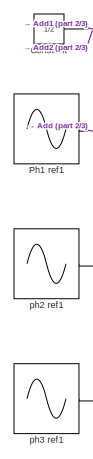
[diagram: root canvas - part 1/3, top left region]
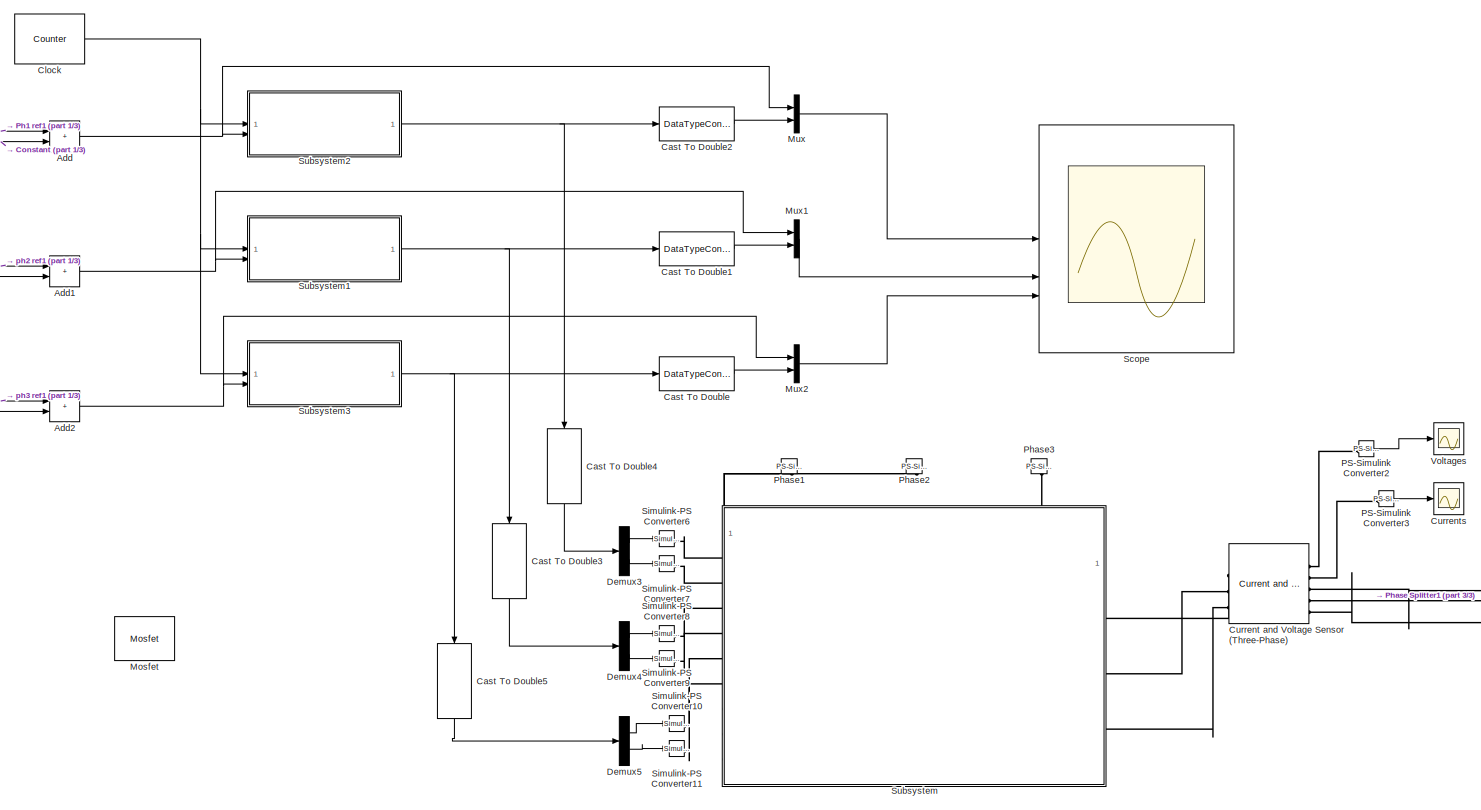
[diagram: root canvas - part 2/3, left side, full height]
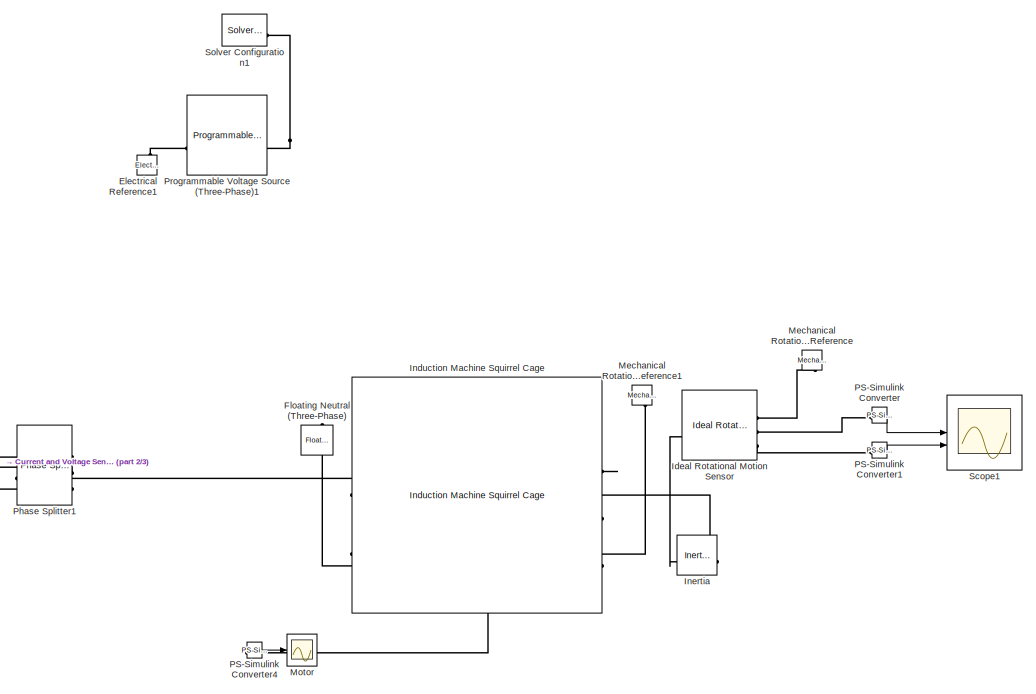
[diagram: root canvas - part 3/3, right side, full height]
MODEL slx_5619c3402cdb
KIND model
CONFIG AbsTol = auto
CONFIG EnableMultiTasking = off
CONFIG FixedStep = auto
CONFIG MaxStep = auto
CONFIG MinStep = auto
CONFIG RelTol = 1e-3
CONFIG SampleTimeConstraint = Unconstrained
CONFIG SolverName = VariableStepAuto
CONFIG StartTime = 0.0
CONFIG StopTime = 100e-3
WORKSPACE source: mxarray member
WORKSPACE Deadtime = 1e-06
WORKSPACE Fsw = 6000
WORKSPACE Output_Freq = 60
BLOCK [Sum] Add
  IconShape = rectangular
BLOCK [Sum] Add1
  IconShape = rectangular
BLOCK [Sum] Add2
  IconShape = rectangular
BLOCK [DataTypeConversion] Cast To Double
  OutDataTypeStr = double
  RndMeth = Floor
  SaturateOnIntegerOverflow = off
BLOCK [DataTypeConversion] Cast To Double1
  OutDataTypeStr = double
  RndMeth = Floor
  SaturateOnIntegerOverflow = off
BLOCK [DataTypeConversion] Cast To Double2
  OutDataTypeStr = double
  RndMeth = Floor
  SaturateOnIntegerOverflow = off
BLOCK [DataTypeConversion] Cast To Double3
  NameLocation = left
  OutDataTypeStr = double
  RndMeth = Floor
  SaturateOnIntegerOverflow = off
BLOCK [DataTypeConversion] Cast To Double4
  NameLocation = left
  OutDataTypeStr = double
  RndMeth = Floor
  SaturateOnIntegerOverflow = off
BLOCK [DataTypeConversion] Cast To Double5
  NameLocation = left
  OutDataTypeStr = double
  RndMeth = Floor
  SaturateOnIntegerOverflow = off
BLOCK [Reference] Clock  REF=eeGeneralControl/Counter
  LibrarySourceBlock = ee_sl_lib/General Control/Counter
  SourceBlock = eeGeneralControl/Counter
  SourceType = Counter
BLOCK [Constant] Constant
  Value = 1/2
BLOCK [Reference] Current and Voltage Sensor (Three-Phase)  REF=ee_lib/Sensors &
Transducers/Current and Voltage
Sensor (Three-Phase)
  Commented = on
  SourceBlock = ee_lib/Sensors &\nTransducers/Current and Voltage\nSensor (Three-Phase)
  SourceType = Current and Voltage\nSensor (Three-Phase)
BLOCK [Scope] Currents
  Commented = on
  Floating = off
  NumInputPorts = 1
  ScopeSpecificationString = Simulink.scopes.TimeScopeBlockCfg('CurrentConfiguration', extmgr.ConfigurationSet(extmgr.Configuration('Core','General UI',true),extmgr.Configuration('Core','Source UI',true),extmgr.Configuration('Sources','WiredSimulink',true,'DataLoggingVariableName','ScopeData3'),extmgr.Configuration('Visuals','Time Domain',true,'SerializedDisplays',{struct('MinYLimReal','2.14833','MaxYLimReal','2.1491','YLabel...<+1506ch>
BLOCK [Demux] Demux3
  Outputs = 2
BLOCK [Demux] Demux4
  Outputs = 2
BLOCK [Demux] Demux5
  Outputs = 2
BLOCK [Reference] Electrical Reference1  REF=fl_lib/Electrical/Electrical Elements/Electrical Reference
  Commented = on
  LibrarySourceBlock = ee_lib/Connectors &\nReferences/Electrical Reference
  NameLocation = right
  SourceBlock = fl_lib/Electrical/Electrical Elements/Electrical Reference
  SourceType = Electrical Reference
BLOCK [Reference] Floating Neutral (Three-Phase)  REF=ee_lib/Connectors &
References/Floating Neutral
(Three-Phase)
  Commented = on
  NameLocation = right
  SourceBlock = ee_lib/Connectors &\nReferences/Floating Neutral\n(Three-Phase)
  SourceType = Floating Neutral\n(Three-Phase)
BLOCK [Reference] Ideal Rotational Motion Sensor  REF=fl_lib/Mechanical/Mechanical Sensors/Ideal Rotational
Motion Sensor
  Commented = on
  SourceBlock = fl_lib/Mechanical/Mechanical Sensors/Ideal Rotational\nMotion Sensor
  SourceType = Ideal Rotational\nMotion Sensor
BLOCK [Reference] Induction Machine Squirrel Cage  REF=ee_lib/Electromechanical/Asynchronous/Induction Machine
Squirrel Cage
  Commented = on
  NameLocation = top
  SourceBlock = ee_lib/Electromechanical/Asynchronous/Induction Machine\nSquirrel Cage
  SourceType = Induction Machine\nSquirrel Cage
BLOCK [Reference] Inertia  REF=fl_lib/Mechanical/Rotational Elements/Inertia
  Commented = on
  NameLocation = top
  SourceBlock = fl_lib/Mechanical/Rotational Elements/Inertia
  SourceType = Inertia
BLOCK [Reference] Mechanical Rotational Reference  REF=fl_lib/Mechanical/Rotational Elements/Mechanical
Rotational Reference
  Commented = on
  NameLocation = left
  SourceBlock = fl_lib/Mechanical/Rotational Elements/Mechanical\nRotational Reference
  SourceType = Mechanical\nRotational Reference
BLOCK [Reference] Mechanical Rotational Reference1  REF=fl_lib/Mechanical/Rotational Elements/Mechanical
Rotational Reference
  Commented = on
  NameLocation = left
  SourceBlock = fl_lib/Mechanical/Rotational Elements/Mechanical\nRotational Reference
  SourceType = Mechanical\nRotational Reference
BLOCK [Reference] Mosfet  REF=spsMosfetLib/Mosfet
  LibrarySourceBlock = sps_lib/Power Electronics/Mosfet
  SourceBlock = spsMosfetLib/Mosfet
  SourceType = Mosfet
BLOCK [Scope] Motor
  Commented = on
  Floating = off
  NumInputPorts = 1
  ScopeSpecificationString = Simulink.scopes.TimeScopeBlockCfg('CurrentConfiguration', extmgr.ConfigurationSet(extmgr.Configuration('Core','General UI',true),extmgr.Configuration('Core','Source UI',true),extmgr.Configuration('Sources','WiredSimulink',true,'DataLoggingVariableName','ScopeData4'),extmgr.Configuration('Visuals','Time Domain',true,'SerializedDisplays',{struct('MinYLimReal','-0.26498','MaxYLimReal','0.24212','YLab...<+1622ch>
BLOCK [Mux] Mux
  DisplayOption = bar
  Inputs = 2
BLOCK [Mux] Mux1
  DisplayOption = bar
  Inputs = 2
BLOCK [Mux] Mux2
  DisplayOption = bar
  Inputs = 2
BLOCK [Reference] PS-Simulink Converter  REF=nesl_utility/PS-Simulink
Converter
  Commented = on
  SourceBlock = nesl_utility/PS-Simulink\nConverter
  SourceType = PS-Simulink\nConverter
BLOCK [Reference] PS-Simulink Converter1  REF=nesl_utility/PS-Simulink
Converter
  Commented = on
  SourceBlock = nesl_utility/PS-Simulink\nConverter
  SourceType = PS-Simulink\nConverter
BLOCK [Reference] PS-Simulink Converter2  REF=nesl_utility/PS-Simulink
Converter
  Commented = on
  SourceBlock = nesl_utility/PS-Simulink\nConverter
  SourceType = PS-Simulink\nConverter
BLOCK [Reference] PS-Simulink Converter3  REF=nesl_utility/PS-Simulink
Converter
  Commented = on
  SourceBlock = nesl_utility/PS-Simulink\nConverter
  SourceType = PS-Simulink\nConverter
BLOCK [Reference] PS-Simulink Converter4  REF=nesl_utility/PS-Simulink
Converter
  Commented = on
  SourceBlock = nesl_utility/PS-Simulink\nConverter
  SourceType = PS-Simulink\nConverter
BLOCK [Sin] Ph1 ref1
  Amplitude = 1/2
  Frequency = Output_Freq
  SampleTime = 0
BLOCK [Reference] Phase Splitter1  REF=ee_lib/Connectors &
References/Phase Splitter
  Commented = on
  NameLocation = top
  SourceBlock = ee_lib/Connectors &\nReferences/Phase Splitter
  SourceType = Phase Splitter
BLOCK [Reference] Phase1  REF=nesl_utility/PS-Simulink
Converter
  Commented = on
  NameLocation = right
  SourceBlock = nesl_utility/PS-Simulink\nConverter
  SourceType = PS-Simulink\nConverter
BLOCK [Reference] Phase2  REF=nesl_utility/PS-Simulink
Converter
  Commented = on
  NameLocation = right
  SourceBlock = nesl_utility/PS-Simulink\nConverter
  SourceType = PS-Simulink\nConverter
BLOCK [Reference] Phase3  REF=nesl_utility/PS-Simulink
Converter
  Commented = on
  NameLocation = right
  SourceBlock = nesl_utility/PS-Simulink\nConverter
  SourceType = PS-Simulink\nConverter
BLOCK [Reference] Programmable Voltage Source (Three-Phase)1  REF=ee_lib/Sources/Programmable Voltage
Source
(Three-Phase)
  Commented = on
  SourceBlock = ee_lib/Sources/Programmable Voltage\nSource\n(Three-Phase)
  SourceType = Programmable Voltage\nSource\n(Three-Phase)
BLOCK [Scope] Scope
  Floating = off
  NumInputPorts = 3
  ScopeSpecificationString = Simulink.scopes.TimeScopeBlockCfg('CurrentConfiguration', extmgr.ConfigurationSet(extmgr.Configuration('Core','General UI',true),extmgr.Configuration('Core','Source UI',true),extmgr.Configuration('Sources','WiredSimulink',true),extmgr.Configuration('Visuals','Time Domain',true,'SerializedDisplays',{struct('MinYLimReal','-0.125','MaxYLimReal','1.125','YLabelReal','','MinYLimMag','0.00000','MaxYLimM...<+2792ch>
BLOCK [Scope] Scope1
  Commented = on
  Floating = off
  NumInputPorts = 2
  ScopeSpecificationString = Simulink.scopes.TimeScopeBlockCfg('CurrentConfiguration', extmgr.ConfigurationSet(extmgr.Configuration('Core','General UI',true),extmgr.Configuration('Core','Source UI',true),extmgr.Configuration('Sources','WiredSimulink',true,'DataLoggingVariableName','ScopeData1'),extmgr.Configuration('Visuals','Time Domain',true),extmgr.Configuration('Tools','Plot Navigation',true),extmgr.Configuration('Tools',...<+40ch>
BLOCK [Reference] Simulink-PS Converter10  REF=nesl_utility/Simulink-PS
Converter
  Commented = on
  SourceBlock = nesl_utility/Simulink-PS\nConverter
  SourceType = Simulink-PS\nConverter
BLOCK [Reference] Simulink-PS Converter11  REF=nesl_utility/Simulink-PS
Converter
  Commented = on
  SourceBlock = nesl_utility/Simulink-PS\nConverter
  SourceType = Simulink-PS\nConverter
BLOCK [Reference] Simulink-PS Converter6  REF=nesl_utility/Simulink-PS
Converter
  Commented = on
  SourceBlock = nesl_utility/Simulink-PS\nConverter
  SourceType = Simulink-PS\nConverter
BLOCK [Reference] Simulink-PS Converter7  REF=nesl_utility/Simulink-PS
Converter
  Commented = on
  SourceBlock = nesl_utility/Simulink-PS\nConverter
  SourceType = Simulink-PS\nConverter
BLOCK [Reference] Simulink-PS Converter8  REF=nesl_utility/Simulink-PS
Converter
  Commented = on
  SourceBlock = nesl_utility/Simulink-PS\nConverter
  SourceType = Simulink-PS\nConverter
BLOCK [Reference] Simulink-PS Converter9  REF=nesl_utility/Simulink-PS
Converter
  Commented = on
  SourceBlock = nesl_utility/Simulink-PS\nConverter
  SourceType = Simulink-PS\nConverter
BLOCK [Reference] Solver Configuration1  REF=nesl_utility/Solver
Configuration
  Commented = on
  SourceBlock = nesl_utility/Solver\nConfiguration
  SourceType = Solver\nConfiguration
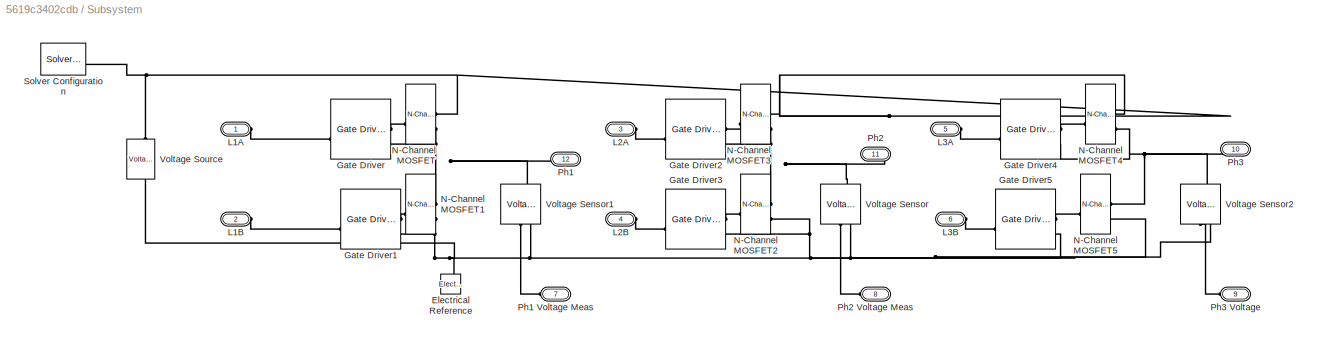
BLOCK [SubSystem] Subsystem
  Commented = on
  PortSchema = {"entries":[{"content":{"sides":[{"content":{"connectorIds":["LConn1","LConn2","LConn3","LConn4","LConn5","LConn6"]},"type":"ConnectorPlacement.EquallySpacedRectSide","uuid":"af31cf31-3d53-4e7b-b634-e8eb8ec30595"},{"content":{"connectorIds":["RConn1","RConn2","RConn3"],"side":"RIGHT"},"type":"ConnectorPlacement.EquallySpacedRectSide","uuid":"70d148f0-6af3-446a-994f-8e3408ada8e6"},{"content":{"conn...<+334ch>
BLOCK [Reference] Subsystem/Electrical Reference  REF=fl_lib/Electrical/Electrical Elements/Electrical Reference
  LibrarySourceBlock = ee_lib/Connectors &\nReferences/Electrical Reference
  NameLocation = right
  SourceBlock = fl_lib/Electrical/Electrical Elements/Electrical Reference
  SourceType = Electrical Reference
BLOCK [Reference] Subsystem/Gate Driver  REF=ee_lib/Semiconductors &
Converters/Gate Driver
  SourceBlock = ee_lib/Semiconductors &\nConverters/Gate Driver
  SourceType = Gate Driver
BLOCK [Reference] Subsystem/Gate Driver1  REF=ee_lib/Semiconductors &
Converters/Gate Driver
  SourceBlock = ee_lib/Semiconductors &\nConverters/Gate Driver
  SourceType = Gate Driver
BLOCK [Reference] Subsystem/Gate Driver2  REF=ee_lib/Semiconductors &
Converters/Gate Driver
  SourceBlock = ee_lib/Semiconductors &\nConverters/Gate Driver
  SourceType = Gate Driver
BLOCK [Reference] Subsystem/Gate Driver3  REF=ee_lib/Semiconductors &
Converters/Gate Driver
  SourceBlock = ee_lib/Semiconductors &\nConverters/Gate Driver
  SourceType = Gate Driver
BLOCK [Reference] Subsystem/Gate Driver4  REF=ee_lib/Semiconductors &
Converters/Gate Driver
  SourceBlock = ee_lib/Semiconductors &\nConverters/Gate Driver
  SourceType = Gate Driver
BLOCK [Reference] Subsystem/Gate Driver5  REF=ee_lib/Semiconductors &
Converters/Gate Driver
  SourceBlock = ee_lib/Semiconductors &\nConverters/Gate Driver
  SourceType = Gate Driver
BLOCK [PMIOPort] Subsystem/L1A
  Side = Left
BLOCK [PMIOPort] Subsystem/L1B
  Port = 2
  Side = Left
BLOCK [PMIOPort] Subsystem/L2A
  Port = 3
  Side = Left
BLOCK [PMIOPort] Subsystem/L2B
  Port = 4
  Side = Left
BLOCK [PMIOPort] Subsystem/L3A
  Port = 5
  Side = Left
BLOCK [PMIOPort] Subsystem/L3B
  Port = 6
  Side = Left
BLOCK [Reference] Subsystem/N-Channel MOSFET  REF=ee_lib/Semiconductors &
Converters/N-Channel MOSFET
  SourceBlock = ee_lib/Semiconductors &\nConverters/N-Channel MOSFET
  SourceType = N-Channel MOSFET
BLOCK [Reference] Subsystem/N-Channel MOSFET1  REF=ee_lib/Semiconductors &
Converters/N-Channel MOSFET
  SourceBlock = ee_lib/Semiconductors &\nConverters/N-Channel MOSFET
  SourceType = N-Channel MOSFET
BLOCK [Reference] Subsystem/N-Channel MOSFET2  REF=ee_lib/Semiconductors &
Converters/N-Channel MOSFET
  SourceBlock = ee_lib/Semiconductors &\nConverters/N-Channel MOSFET
  SourceType = N-Channel MOSFET
BLOCK [Reference] Subsystem/N-Channel MOSFET3  REF=ee_lib/Semiconductors &
Converters/N-Channel MOSFET
  SourceBlock = ee_lib/Semiconductors &\nConverters/N-Channel MOSFET
  SourceType = N-Channel MOSFET
BLOCK [Reference] Subsystem/N-Channel MOSFET4  REF=ee_lib/Semiconductors &
Converters/N-Channel MOSFET
  SourceBlock = ee_lib/Semiconductors &\nConverters/N-Channel MOSFET
  SourceType = N-Channel MOSFET
BLOCK [Reference] Subsystem/N-Channel MOSFET5  REF=ee_lib/Semiconductors &
Converters/N-Channel MOSFET
  SourceBlock = ee_lib/Semiconductors &\nConverters/N-Channel MOSFET
  SourceType = N-Channel MOSFET
BLOCK [PMIOPort] Subsystem/Ph1
  Port = 12
  Side = Right
BLOCK [PMIOPort] Subsystem/Ph1 Voltage Meas
  Port = 7
  Side = Left
BLOCK [PMIOPort] Subsystem/Ph2
  Port = 11
  Side = Right
BLOCK [PMIOPort] Subsystem/Ph2 Voltage Meas
  Port = 8
  Side = Left
BLOCK [PMIOPort] Subsystem/Ph3
  Port = 10
  Side = Right
BLOCK [PMIOPort] Subsystem/Ph3 Voltage
  Port = 9
  Side = Left
BLOCK [Reference] Subsystem/Solver Configuration  REF=nesl_utility/Solver
Configuration
  SourceBlock = nesl_utility/Solver\nConfiguration
  SourceType = Solver\nConfiguration
BLOCK [Reference] Subsystem/Voltage Sensor  REF=fl_lib/Electrical/Electrical Sensors/Voltage Sensor
  LibrarySourceBlock = ee_lib/Sensors &\nTransducers/Voltage Sensor
  NameLocation = right
  SourceBlock = fl_lib/Electrical/Electrical Sensors/Voltage Sensor
  SourceType = Voltage Sensor
BLOCK [Reference] Subsystem/Voltage Sensor1  REF=fl_lib/Electrical/Electrical Sensors/Voltage Sensor
  LibrarySourceBlock = ee_lib/Sensors &\nTransducers/Voltage Sensor
  NameLocation = right
  SourceBlock = fl_lib/Electrical/Electrical Sensors/Voltage Sensor
  SourceType = Voltage Sensor
BLOCK [Reference] Subsystem/Voltage Sensor2  REF=fl_lib/Electrical/Electrical Sensors/Voltage Sensor
  LibrarySourceBlock = ee_lib/Sensors &\nTransducers/Voltage Sensor
  NameLocation = right
  SourceBlock = fl_lib/Electrical/Electrical Sensors/Voltage Sensor
  SourceType = Voltage Sensor
BLOCK [Reference] Subsystem/Voltage Source  REF=ee_lib/Sources/Voltage Source
  NameLocation = right
  SourceBlock = ee_lib/Sources/Voltage Source
  SourceType = Voltage Source
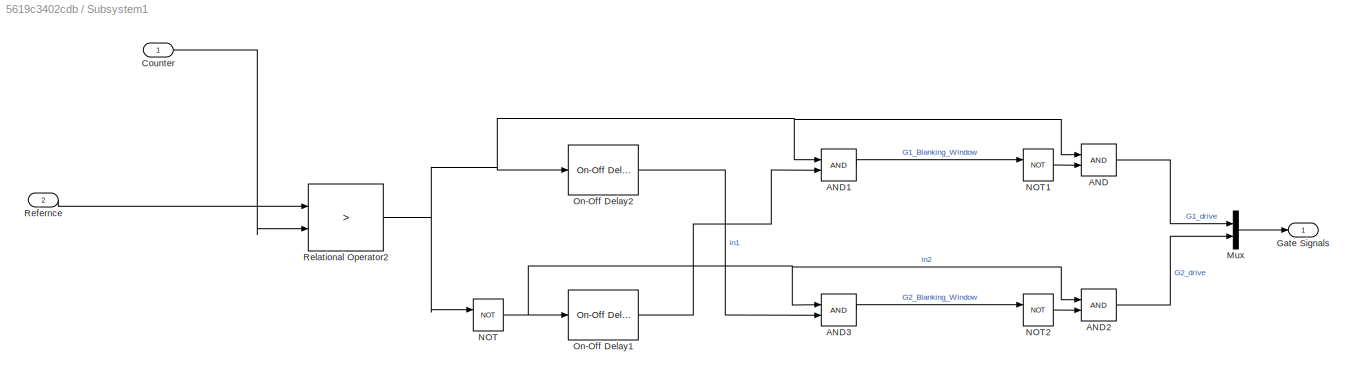
BLOCK [SubSystem] Subsystem1
BLOCK [Logic] Subsystem1/AND
  AllPortsSameDT = off
  IconShape = distinctive
  OutDataTypeStr = boolean
BLOCK [Logic] Subsystem1/AND1
  AllPortsSameDT = off
  IconShape = distinctive
  OutDataTypeStr = boolean
BLOCK [Logic] Subsystem1/AND2
  AllPortsSameDT = off
  IconShape = distinctive
  OutDataTypeStr = boolean
BLOCK [Logic] Subsystem1/AND3
  AllPortsSameDT = off
  IconShape = distinctive
  OutDataTypeStr = boolean
BLOCK [Inport] Subsystem1/Counter
BLOCK [Outport] Subsystem1/Gate Signals
BLOCK [Mux] Subsystem1/Mux
  DisplayOption = bar
  Inputs = 2
BLOCK [Logic] Subsystem1/NOT
  AllPortsSameDT = off
  IconShape = distinctive
  Operator = NOT
  OutDataTypeStr = boolean
BLOCK [Logic] Subsystem1/NOT1
  AllPortsSameDT = off
  IconShape = distinctive
  Operator = NOT
  OutDataTypeStr = boolean
BLOCK [Logic] Subsystem1/NOT2
  AllPortsSameDT = off
  IconShape = distinctive
  Operator = NOT
  OutDataTypeStr = boolean
BLOCK [Reference] Subsystem1/On-Off Delay1  REF=eeGeneralControl/On-Off Delay
  LibrarySourceBlock = ee_sl_lib/General Control/On-Off Delay
  SourceBlock = eeGeneralControl/On-Off Delay
  SourceType = On-Off Delay
BLOCK [Reference] Subsystem1/On-Off Delay2  REF=eeGeneralControl/On-Off Delay
  LibrarySourceBlock = ee_sl_lib/General Control/On-Off Delay
  SourceBlock = eeGeneralControl/On-Off Delay
  SourceType = On-Off Delay
BLOCK [Inport] Subsystem1/Refernce
  Port = 2
BLOCK [RelationalOperator] Subsystem1/Relational Operator2
  InputSameDT = off
  Operator = >
  OutDataTypeStr = boolean
  RndMeth = Simplest
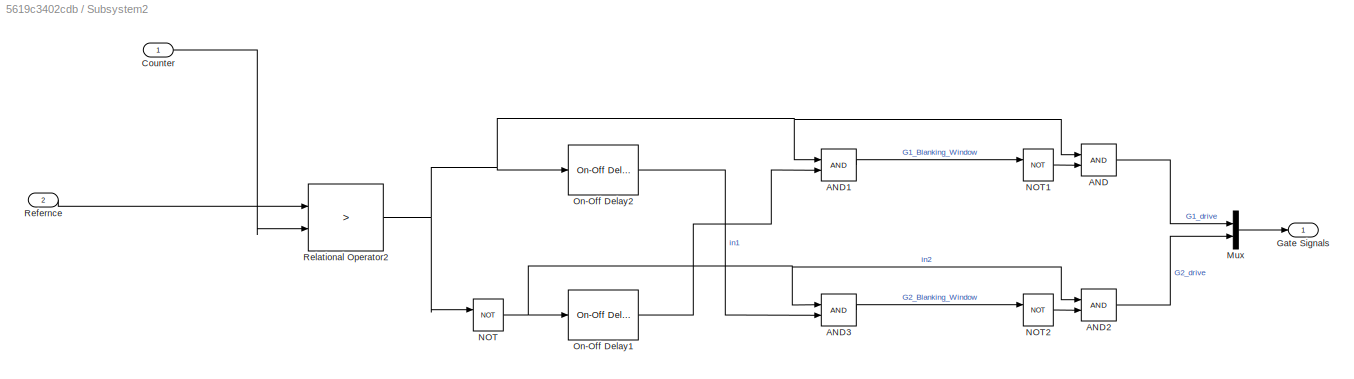
BLOCK [SubSystem] Subsystem2
BLOCK [Logic] Subsystem2/AND
  AllPortsSameDT = off
  IconShape = distinctive
  OutDataTypeStr = boolean
BLOCK [Logic] Subsystem2/AND1
  AllPortsSameDT = off
  IconShape = distinctive
  OutDataTypeStr = boolean
BLOCK [Logic] Subsystem2/AND2
  AllPortsSameDT = off
  IconShape = distinctive
  OutDataTypeStr = boolean
BLOCK [Logic] Subsystem2/AND3
  AllPortsSameDT = off
  IconShape = distinctive
  OutDataTypeStr = boolean
BLOCK [Inport] Subsystem2/Counter
BLOCK [Outport] Subsystem2/Gate Signals
BLOCK [Mux] Subsystem2/Mux
  DisplayOption = bar
  Inputs = 2
BLOCK [Logic] Subsystem2/NOT
  AllPortsSameDT = off
  IconShape = distinctive
  Operator = NOT
  OutDataTypeStr = boolean
BLOCK [Logic] Subsystem2/NOT1
  AllPortsSameDT = off
  IconShape = distinctive
  Operator = NOT
  OutDataTypeStr = boolean
BLOCK [Logic] Subsystem2/NOT2
  AllPortsSameDT = off
  IconShape = distinctive
  Operator = NOT
  OutDataTypeStr = boolean
BLOCK [Reference] Subsystem2/On-Off Delay1  REF=eeGeneralControl/On-Off Delay
  LibrarySourceBlock = ee_sl_lib/General Control/On-Off Delay
  SourceBlock = eeGeneralControl/On-Off Delay
  SourceType = On-Off Delay
BLOCK [Reference] Subsystem2/On-Off Delay2  REF=eeGeneralControl/On-Off Delay
  LibrarySourceBlock = ee_sl_lib/General Control/On-Off Delay
  SourceBlock = eeGeneralControl/On-Off Delay
  SourceType = On-Off Delay
BLOCK [Inport] Subsystem2/Refernce
  Port = 2
BLOCK [RelationalOperator] Subsystem2/Relational Operator2
  InputSameDT = off
  Operator = >
  OutDataTypeStr = boolean
  RndMeth = Simplest
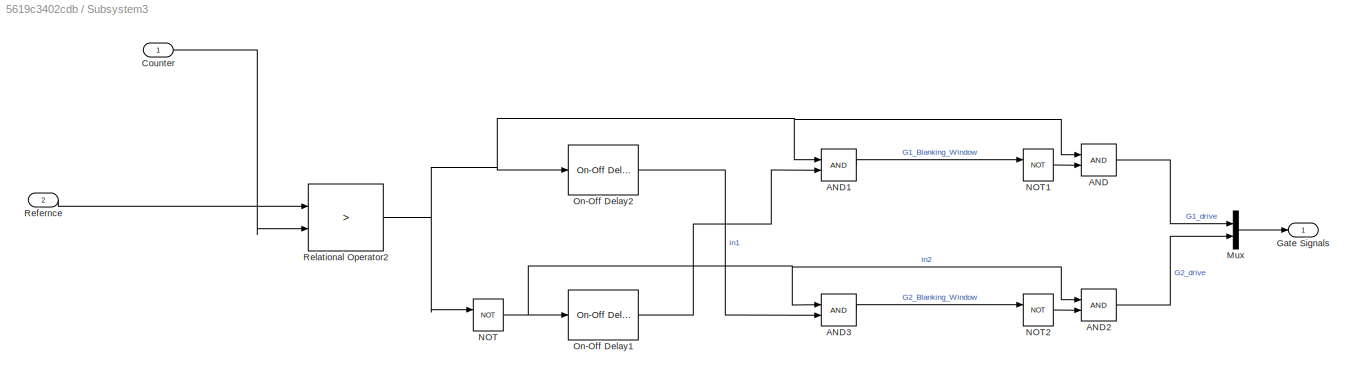
BLOCK [SubSystem] Subsystem3
BLOCK [Logic] Subsystem3/AND
  AllPortsSameDT = off
  IconShape = distinctive
  OutDataTypeStr = boolean
BLOCK [Logic] Subsystem3/AND1
  AllPortsSameDT = off
  IconShape = distinctive
  OutDataTypeStr = boolean
BLOCK [Logic] Subsystem3/AND2
  AllPortsSameDT = off
  IconShape = distinctive
  OutDataTypeStr = boolean
BLOCK [Logic] Subsystem3/AND3
  AllPortsSameDT = off
  IconShape = distinctive
  OutDataTypeStr = boolean
BLOCK [Inport] Subsystem3/Counter
BLOCK [Outport] Subsystem3/Gate Signals
BLOCK [Mux] Subsystem3/Mux
  DisplayOption = bar
  Inputs = 2
BLOCK [Logic] Subsystem3/NOT
  AllPortsSameDT = off
  IconShape = distinctive
  Operator = NOT
  OutDataTypeStr = boolean
BLOCK [Logic] Subsystem3/NOT1
  AllPortsSameDT = off
  IconShape = distinctive
  Operator = NOT
  OutDataTypeStr = boolean
BLOCK [Logic] Subsystem3/NOT2
  AllPortsSameDT = off
  IconShape = distinctive
  Operator = NOT
  OutDataTypeStr = boolean
BLOCK [Reference] Subsystem3/On-Off Delay1  REF=eeGeneralControl/On-Off Delay
  LibrarySourceBlock = ee_sl_lib/General Control/On-Off Delay
  SourceBlock = eeGeneralControl/On-Off Delay
  SourceType = On-Off Delay
BLOCK [Reference] Subsystem3/On-Off Delay2  REF=eeGeneralControl/On-Off Delay
  LibrarySourceBlock = ee_sl_lib/General Control/On-Off Delay
  SourceBlock = eeGeneralControl/On-Off Delay
  SourceType = On-Off Delay
BLOCK [Inport] Subsystem3/Refernce
  Port = 2
BLOCK [RelationalOperator] Subsystem3/Relational Operator2
  InputSameDT = off
  Operator = >
  OutDataTypeStr = boolean
  RndMeth = Simplest
BLOCK [Scope] Voltages
  Commented = on
  Floating = off
  NumInputPorts = 1
  ScopeSpecificationString = Simulink.scopes.TimeScopeBlockCfg('CurrentConfiguration', extmgr.ConfigurationSet(extmgr.Configuration('Core','General UI',true),extmgr.Configuration('Core','Source UI',true),extmgr.Configuration('Sources','WiredSimulink',true,'DataLoggingVariableName','ScopeData2'),extmgr.Configuration('Visuals','Time Domain',true,'SerializedDisplays',{struct('MinYLimReal','-125.92269','MaxYLimReal','125.92269','...<+1522ch>
BLOCK [Sin] ph2 ref1
  Amplitude = 1/2
  Frequency = Output_Freq
  Phase = 2*pi/3
  SampleTime = 0
BLOCK [Sin] ph3 ref1
  Amplitude = 1/2
  Frequency = Output_Freq
  Phase = 4*pi/3
  SampleTime = 0
NET Add1:1 -> Mux1:1, Subsystem1:2
NET Add2:1 -> Mux2:1, Subsystem3:2
NET Add:1 -> Mux:1, Subsystem2:2
LINE Cast To Double1:1 -> Mux1:2
LINE Cast To Double2:1 -> Mux:2
LINE Cast To Double3:1 -> Demux4:1
LINE Cast To Double4:1 -> Demux3:1
LINE Cast To Double5:1 -> Demux5:1
LINE Cast To Double:1 -> Mux2:2
NET Clock:1 -> Subsystem1:1, Subsystem2:1, Subsystem3:1
NET Constant:1 -> Add1:2, Add2:2, Add:2
LINE Demux3:1 -> Simulink-PS Converter6:1
LINE Demux3:2 -> Simulink-PS Converter7:1
LINE Demux4:1 -> Simulink-PS Converter8:1
LINE Demux4:2 -> Simulink-PS Converter9:1
LINE Demux5:1 -> Simulink-PS Converter10:1
LINE Demux5:2 -> Simulink-PS Converter11:1
LINE Mux1:1 -> Scope:2
LINE Mux2:1 -> Scope:3
LINE Mux:1 -> Scope:1
LINE PS-Simulink Converter1:1 -> Scope1:2
LINE PS-Simulink Converter2:1 -> Voltages:1
LINE PS-Simulink Converter3:1 -> Currents:1
LINE PS-Simulink Converter4:1 -> Motor:1
LINE PS-Simulink Converter:1 -> Scope1:1
LINE Ph1 ref1:1 -> Add:1
LINE Subsystem1/AND1:1 -> Subsystem1/NOT1:1
LINE Subsystem1/AND2:1 -> Subsystem1/Mux:2
LINE Subsystem1/AND3:1 -> Subsystem1/NOT2:1
LINE Subsystem1/AND:1 -> Subsystem1/Mux:1
LINE Subsystem1/Counter:1 -> Subsystem1/Relational Operator2:2
LINE Subsystem1/Mux:1 -> Subsystem1/Gate Signals:1
LINE Subsystem1/NOT1:1 -> Subsystem1/AND:2
LINE Subsystem1/NOT2:1 -> Subsystem1/AND2:2
NET Subsystem1/NOT:1 -> Subsystem1/AND2:1, Subsystem1/AND3:1, Subsystem1/On-Off Delay1:1
LINE Subsystem1/On-Off Delay1:1 -> Subsystem1/AND1:2
LINE Subsystem1/On-Off Delay2:1 -> Subsystem1/AND3:2
LINE Subsystem1/Refernce:1 -> Subsystem1/Relational Operator2:1
NET Subsystem1/Relational Operator2:1 -> Subsystem1/AND1:1, Subsystem1/AND:1, Subsystem1/NOT:1, Subsystem1/On-Off Delay2:1
NET Subsystem1:1 -> Cast To Double1:1, Cast To Double3:1
LINE Subsystem2/AND1:1 -> Subsystem2/NOT1:1
LINE Subsystem2/AND2:1 -> Subsystem2/Mux:2
LINE Subsystem2/AND3:1 -> Subsystem2/NOT2:1
LINE Subsystem2/AND:1 -> Subsystem2/Mux:1
LINE Subsystem2/Counter:1 -> Subsystem2/Relational Operator2:2
LINE Subsystem2/Mux:1 -> Subsystem2/Gate Signals:1
LINE Subsystem2/NOT1:1 -> Subsystem2/AND:2
LINE Subsystem2/NOT2:1 -> Subsystem2/AND2:2
NET Subsystem2/NOT:1 -> Subsystem2/AND2:1, Subsystem2/AND3:1, Subsystem2/On-Off Delay1:1
LINE Subsystem2/On-Off Delay1:1 -> Subsystem2/AND1:2
LINE Subsystem2/On-Off Delay2:1 -> Subsystem2/AND3:2
LINE Subsystem2/Refernce:1 -> Subsystem2/Relational Operator2:1
NET Subsystem2/Relational Operator2:1 -> Subsystem2/AND1:1, Subsystem2/AND:1, Subsystem2/NOT:1, Subsystem2/On-Off Delay2:1
NET Subsystem2:1 -> Cast To Double2:1, Cast To Double4:1
LINE Subsystem3/AND1:1 -> Subsystem3/NOT1:1
LINE Subsystem3/AND2:1 -> Subsystem3/Mux:2
LINE Subsystem3/AND3:1 -> Subsystem3/NOT2:1
LINE Subsystem3/AND:1 -> Subsystem3/Mux:1
LINE Subsystem3/Counter:1 -> Subsystem3/Relational Operator2:2
LINE Subsystem3/Mux:1 -> Subsystem3/Gate Signals:1
LINE Subsystem3/NOT1:1 -> Subsystem3/AND:2
LINE Subsystem3/NOT2:1 -> Subsystem3/AND2:2
NET Subsystem3/NOT:1 -> Subsystem3/AND2:1, Subsystem3/AND3:1, Subsystem3/On-Off Delay1:1
LINE Subsystem3/On-Off Delay1:1 -> Subsystem3/AND1:2
LINE Subsystem3/On-Off Delay2:1 -> Subsystem3/AND3:2
LINE Subsystem3/Refernce:1 -> Subsystem3/Relational Operator2:1
NET Subsystem3/Relational Operator2:1 -> Subsystem3/AND1:1, Subsystem3/AND:1, Subsystem3/NOT:1, Subsystem3/On-Off Delay2:1
NET Subsystem3:1 -> Cast To Double5:1, Cast To Double:1
LINE ph2 ref1:1 -> Add1:1
LINE ph3 ref1:1 -> Add2:1
PLINE Current and Voltage Sensor (Three-Phase):LConn1 -- Subsystem:RConn1
PLINE Current and Voltage Sensor (Three-Phase):LConn2 -- Subsystem:RConn2
PLINE Current and Voltage Sensor (Three-Phase):LConn3 -- Subsystem:RConn3
PLINE Current and Voltage Sensor (Three-Phase):RConn1 -- PS-Simulink Converter2:LConn1
PLINE Current and Voltage Sensor (Three-Phase):RConn2 -- PS-Simulink Converter3:LConn1
PLINE Current and Voltage Sensor (Three-Phase):RConn3 -- Phase Splitter1:RConn1
PLINE Current and Voltage Sensor (Three-Phase):RConn4 -- Phase Splitter1:RConn2
PLINE Current and Voltage Sensor (Three-Phase):RConn5 -- Phase Splitter1:RConn3
PLINE Electrical Reference1:LConn1 -- Programmable Voltage Source (Three-Phase)1:LConn1
PLINE Floating Neutral (Three-Phase):LConn1 -- Induction Machine Squirrel Cage:RConn3
PNET net1: Ideal Rotational Motion Sensor:LConn1 -- Induction Machine Squirrel Cage:LConn1 -- Inertia:LConn1
PLINE Ideal Rotational Motion Sensor:RConn1 -- Mechanical Rotational Reference:LConn1
PLINE Ideal Rotational Motion Sensor:RConn2 -- PS-Simulink Converter:LConn1
PLINE Ideal Rotational Motion Sensor:RConn3 -- PS-Simulink Converter1:LConn1
PLINE Induction Machine Squirrel Cage:LConn2 -- Mechanical Rotational Reference1:LConn1
PLINE Induction Machine Squirrel Cage:RConn1 -- PS-Simulink Converter4:LConn1
PLINE Induction Machine Squirrel Cage:RConn2 -- Phase Splitter1:LConn1
PLINE Phase1:LConn1 -- Subsystem:LConn7
PLINE Phase2:LConn1 -- Subsystem:LConn8
PLINE Phase3:LConn1 -- Subsystem:LConn9
PLINE Programmable Voltage Source (Three-Phase)1:RConn1 -- Solver Configuration1:RConn1
PLINE Simulink-PS Converter10:RConn1 -- Subsystem:LConn5
PLINE Simulink-PS Converter11:RConn1 -- Subsystem:LConn6
PLINE Simulink-PS Converter6:RConn1 -- Subsystem:LConn1
PLINE Simulink-PS Converter7:RConn1 -- Subsystem:LConn2
PLINE Simulink-PS Converter8:RConn1 -- Subsystem:LConn3
PLINE Simulink-PS Converter9:RConn1 -- Subsystem:LConn4
PNET net2: Subsystem/Electrical Reference:LConn1 -- Subsystem/Gate Driver1:RConn2 -- Subsystem/Gate Driver3:RConn2 -- Subsystem/Gate Driver5:RConn2 -- Subsystem/N-Channel MOSFET1:RConn2 -- Subsystem/N-Channel MOSFET2:RConn2 -- Subsystem/N-Channel MOSFET5:RConn2 -- Subsystem/Voltage Sensor1:RConn2 -- Subsystem/Voltage Sensor2:RConn2 -- Subsystem/Voltage Sensor:RConn2 -- Subsystem/Voltage Source:RConn1
PLINE Subsystem/Gate Driver1:LConn1 -- Subsystem/L1B:RConn1
PLINE Subsystem/Gate Driver1:RConn1 -- Subsystem/N-Channel MOSFET1:LConn1
PLINE Subsystem/Gate Driver2:LConn1 -- Subsystem/L2A:RConn1
PLINE Subsystem/Gate Driver2:RConn1 -- Subsystem/N-Channel MOSFET3:LConn1
PNET net3: Subsystem/Gate Driver2:RConn2 -- Subsystem/N-Channel MOSFET2:RConn1 -- Subsystem/N-Channel MOSFET3:RConn2 -- Subsystem/Ph2:RConn1 -- Subsystem/Voltage Sensor:LConn1
PLINE Subsystem/Gate Driver3:LConn1 -- Subsystem/L2B:RConn1
PLINE Subsystem/Gate Driver3:RConn1 -- Subsystem/N-Channel MOSFET2:LConn1
PLINE Subsystem/Gate Driver4:LConn1 -- Subsystem/L3A:RConn1
PLINE Subsystem/Gate Driver4:RConn1 -- Subsystem/N-Channel MOSFET4:LConn1
PNET net4: Subsystem/Gate Driver4:RConn2 -- Subsystem/N-Channel MOSFET4:RConn2 -- Subsystem/N-Channel MOSFET5:RConn1 -- Subsystem/Ph3:RConn1 -- Subsystem/Voltage Sensor2:LConn1
PLINE Subsystem/Gate Driver5:LConn1 -- Subsystem/L3B:RConn1
PLINE Subsystem/Gate Driver5:RConn1 -- Subsystem/N-Channel MOSFET5:LConn1
PLINE Subsystem/Gate Driver:LConn1 -- Subsystem/L1A:RConn1
PLINE Subsystem/Gate Driver:RConn1 -- Subsystem/N-Channel MOSFET:LConn1
PNET net5: Subsystem/Gate Driver:RConn2 -- Subsystem/N-Channel MOSFET1:RConn1 -- Subsystem/N-Channel MOSFET:RConn2 -- Subsystem/Ph1:RConn1 -- Subsystem/Voltage Sensor1:LConn1
PNET net6: Subsystem/N-Channel MOSFET3:RConn1 -- Subsystem/N-Channel MOSFET4:RConn1 -- Subsystem/N-Channel MOSFET:RConn1 -- Subsystem/Solver Configuration:RConn1 -- Subsystem/Voltage Source:LConn1
PLINE Subsystem/Ph1 Voltage Meas:RConn1 -- Subsystem/Voltage Sensor1:RConn1
PLINE Subsystem/Ph2 Voltage Meas:RConn1 -- Subsystem/Voltage Sensor:RConn1
PLINE Subsystem/Ph3 Voltage:RConn1 -- Subsystem/Voltage Sensor2:RConn1
note: NET lines group one-source signal fan-out (src -> all destinations, sorted); 1:1 wires keep LINE; PNET lines group multi-terminal physical nets as a canonical sorted terminal list (undirected conserving connections); 2-terminal nets keep the pairwise PLINE form
